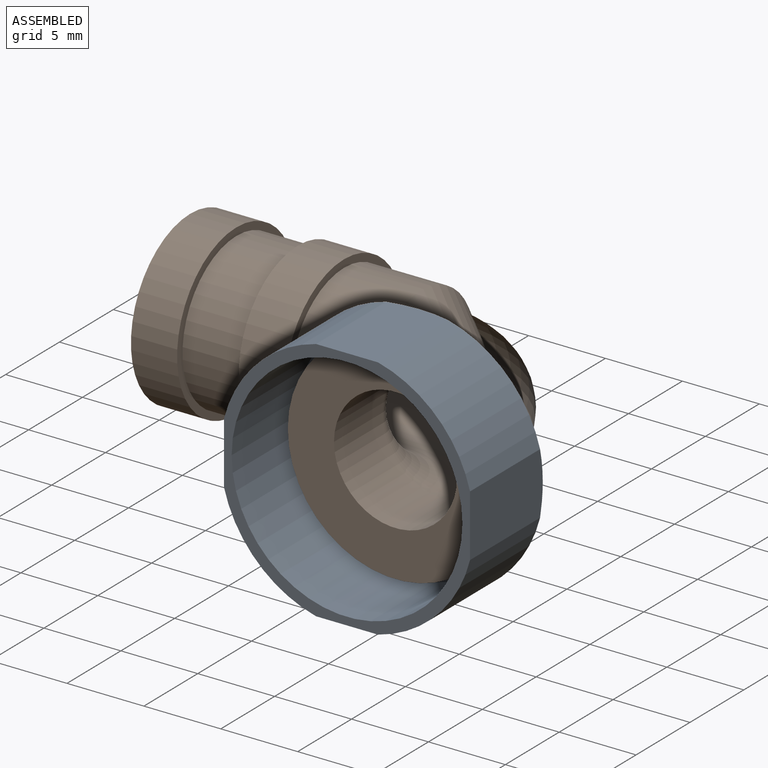
[diagram: assembled view]
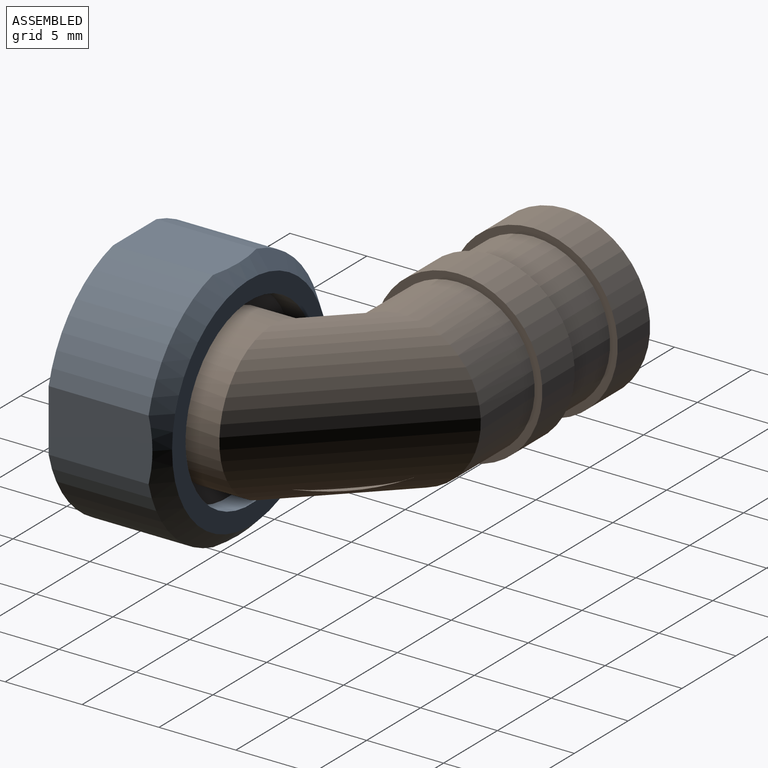
[diagram: assembled view, second angle]
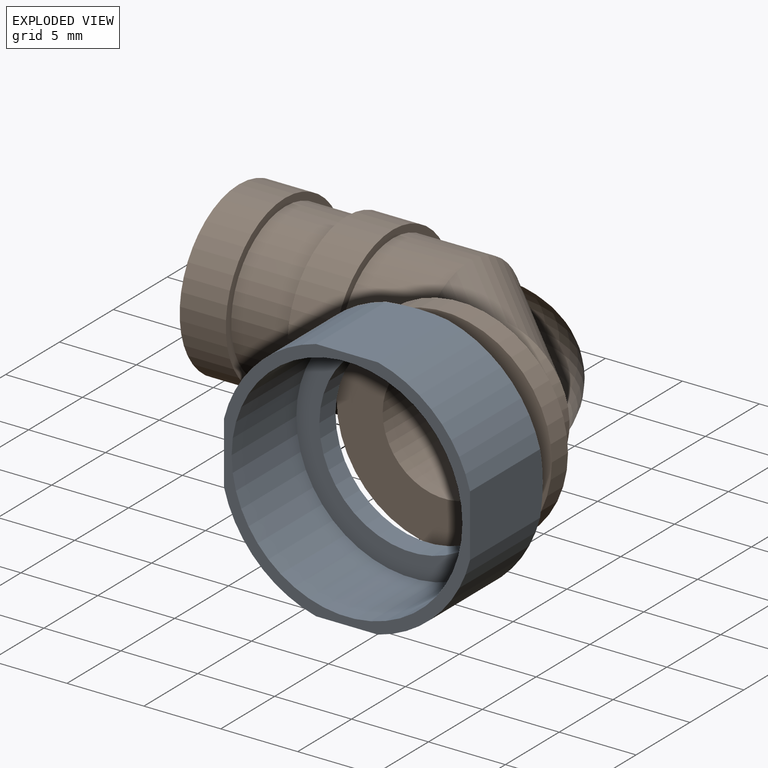
[diagram: exploded view]
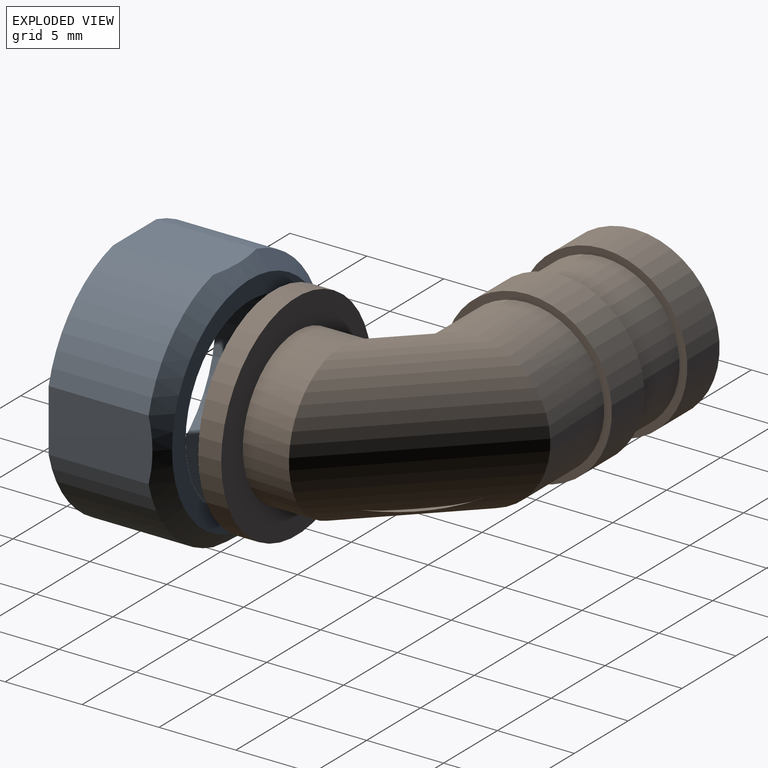
[diagram: exploded view, second angle]
ASSEMBLY  parts=2 mates=2
PART A: 14 faces, bbox 16.7x16.7x7.7 mm
  f0: cylinder r=8.25mm len=6.5mm, axis (0,0,-1), area 57.8mm2, adj f4,f11,f12,f13
  f1: cylinder r=8.25mm len=6.5mm, axis (0,0,-1), area 57.8mm2, adj f4,f10,f11,f13
  f2: cylinder r=8.25mm len=6.5mm, axis (0,0,-1), area 57.8mm2, adj f4,f9,f10,f13
  f3: plane 14.5x14.5mm, normal (0,0,-1), area 52mm2, adj f6,f13
  f4: plane 16x16mm, normal (0,0,1), area 34.4mm2, adj f0,f1,f2,f7,f8,f9,f10,f11
  f5: plane 15x15mm, normal (0,0,1), area 63.6mm2, adj f6,f8
  f6: cylinder r=6mm len=12mm, axis (0,0,-1), area 56.5mm2, adj f3,f5
  f7: cylinder r=8.25mm len=6.5mm, axis (0,0,-1), area 57.8mm2, adj f4,f9,f12,f13
  f8: cylinder r=7.5mm len=15mm, axis (0,0,-1), area 282.7mm2, adj f4,f5
  f9: plane 6.93x4.22mm, normal (1,0,0), area 26.9mm2, adj f2,f4,f7,f13
  f10: plane 6.76x4.04mm, normal (0,1,0), area 26.9mm2, adj f1,f2,f4,f13
  f11: plane 6.76x4.04mm, normal (-1,0,0), area 26.9mm2, adj f0,f1,f4,f13
  f12: plane 6.76x4.04mm, normal (0,-1,0), area 26.9mm2, adj f0,f4,f7,f13
  f13: cone r=8.25mm half-angle=45deg, axis (0,0,1), area 65.3mm2, adj f0,f1,f2,f3,f7,f9,f10,f11
PART B: 16 faces, bbox 27x21.6x14 mm
  f0: cylinder r=5mm len=10mm, axis (-1,0,0), area 125.7mm2, adj f13,f15
  f1: plane 11x11mm, normal (-1,0,0), area 44.8mm2, adj f6,f14
  f2: cylinder r=5.5mm len=11mm, axis (-1,0,0), area 103.7mm2, adj f12,f13
  f3: cylinder r=5mm len=10mm, axis (1,0,0), area 157.1mm2, adj f4,f12
  f4: torus R=5mm, axis (0,0,-1), area 258.4mm2, adj f3,f5
  f5: cylinder r=5mm len=10mm, axis (0,-1,0), area 94.2mm2, adj f4,f11
  f6: cylinder r=4mm len=15mm, axis (1,0,0), area 377mm2, adj f1,f7
  f7: torus R=5mm, axis (0,0,-1), area 197.4mm2, adj f6,f8
  f8: cylinder r=4mm len=8mm, axis (0,-1,0), area 113.1mm2, adj f7,f10
  f9: cylinder r=7mm len=14mm, axis (0,1,0), area 66mm2, adj f10,f11
  f10: plane 14x14mm, normal (0,-1,0), area 103.7mm2, adj f8,f9
  f11: plane 14x14mm, normal (0,1,0), area 75.4mm2, adj f5,f9
  f12: plane 11x11mm, normal (1,0,0), area 16.5mm2, adj f2,f3
  f13: plane 11x11mm, normal (-1,0,0), area 16.5mm2, adj f0,f2
  f14: cylinder r=5.5mm len=11mm, axis (-1,0,0), area 103.7mm2, adj f1,f15
  f15: plane 11x11mm, normal (1,0,0), area 16.5mm2, adj f0,f14
PLACE A rot(axis=(1,0,0),90deg) t=(-26.27,-8.97,-16.68)mm
PLACE B t=(-46.27,-2.47,-16.68)mm
MATE fastened A.f8 <-> B.f9  axis (0,-1,0) through (-26.27,-10.47,-16.68)mm
MATE cylindrical A.f8 <-> B.f9  axis (0,1,0) through (-26.27,-13.47,-16.68)mm
